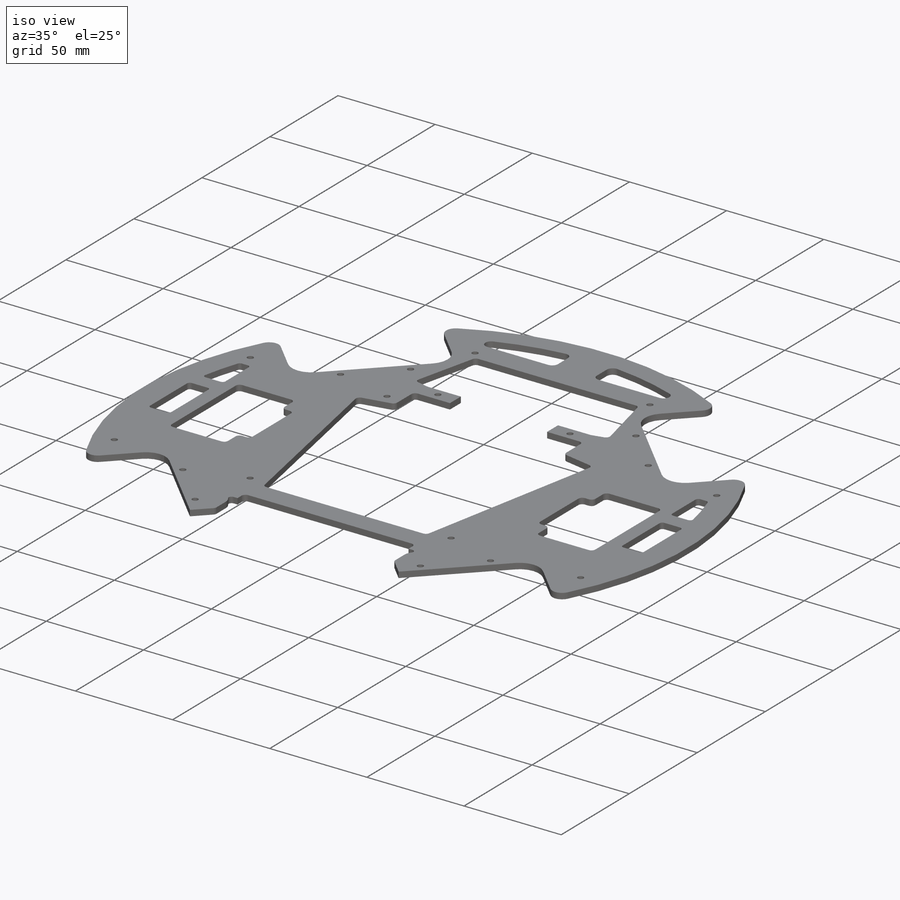
[diagram: iso view]
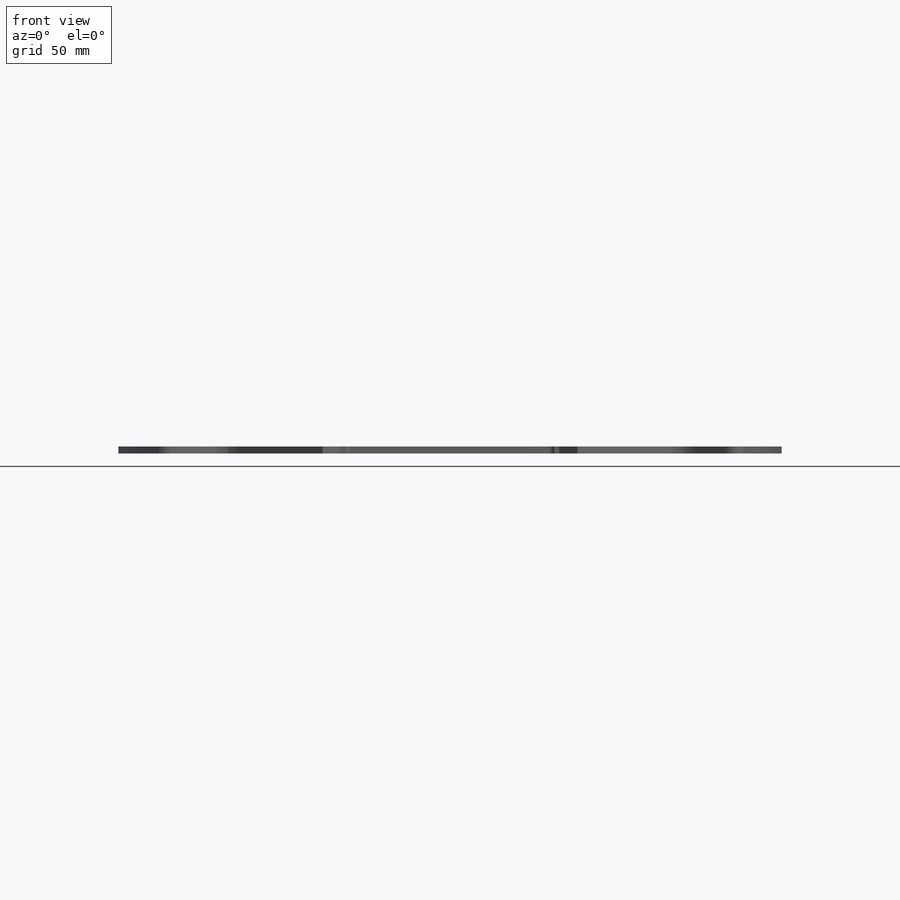
[diagram: front view]
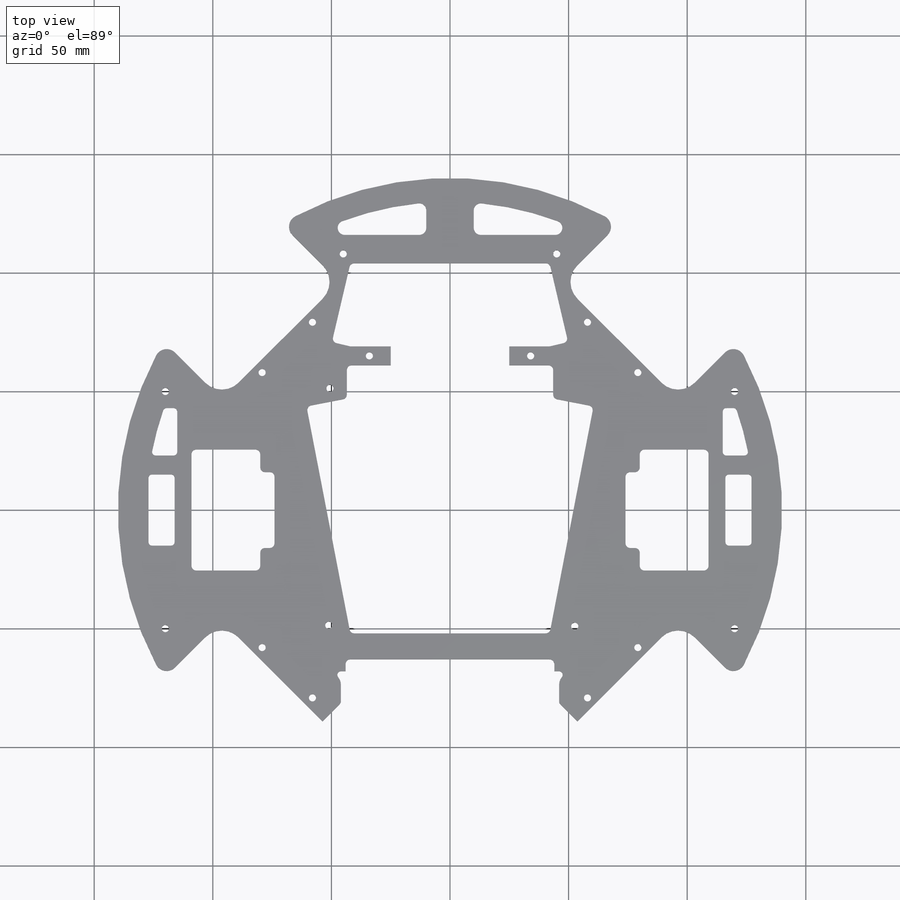
[diagram: top view]
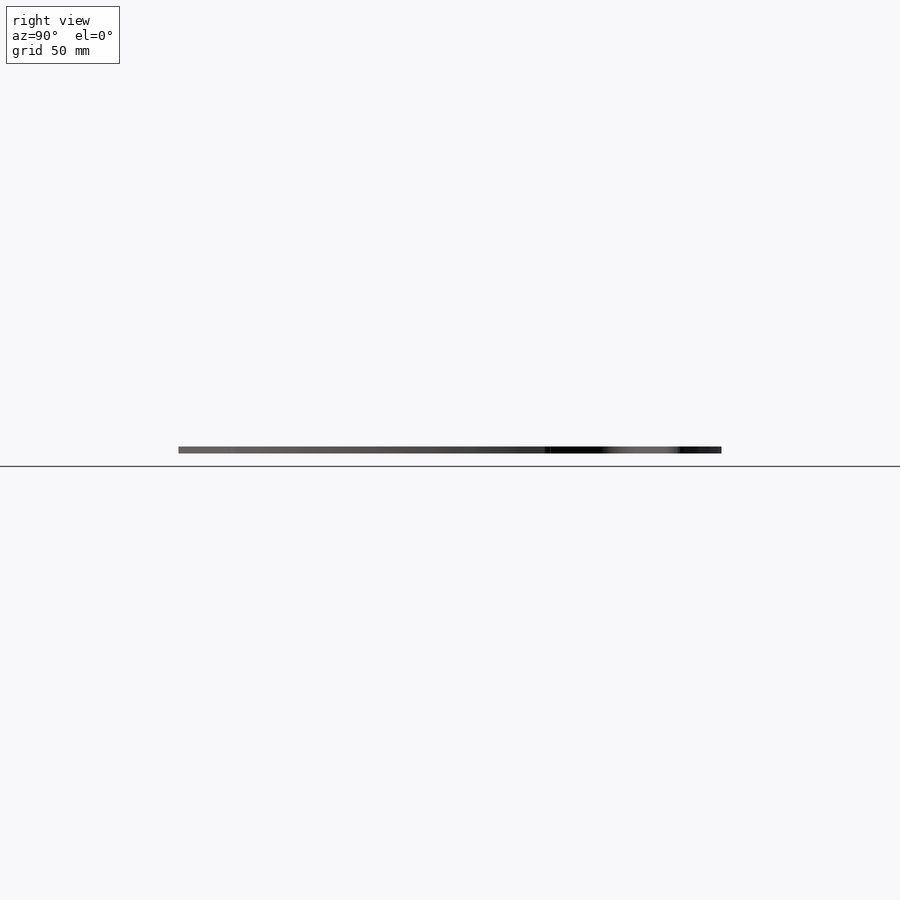
[diagram: right view]
SOLIDWORKS PART (.sldprt)
format: sldprt  version: not decoded by parser v0  size: 870,912 bytes
history: native  units: mm
features: sketch x12, cut_extrude x11, fillet x8, mirror x2, material x1, extrude x1 (+11 scaffold rows collapsed)
feature tree (46):
  scaffold x11  (default folders/planes/origin — collapsed)
  material  "1060 Alloy"
  sketch  "Sketch1"  dims[D1=280.0mm]
  extrude  "Boss-Extrude1"  Depth=3mm
  sketch  "Sketch7"  dims[c1.D4=9.95mm c1.D1=101.0mm c1.D2=70.0mm c1.D3=120.0mm c2.D3=135.0deg c2.D5=50.1mm]
  cut_extrude  "Cut-Extrude4"  [1 undecoded]
  sketch  "Sketch12"  dims[c1.D12=3.0mm c1.D1=10.0mm c1.D2=14.0mm c1.D3=8.0mm c1.D4=8.0mm c1.D5=14.0mm c1.D6=~33.944796mm c2.D6=~0.561705deg c3.D6=8.0mm c3.D3=2.0mm c3.D7=40.0mm c3.D8=6.0mm c3.D9=3.0mm c3.D10=30.0mm c3.D11=10.0mm c3.D13=~23.554417mm c4.D3=6.0mm c4.D4=8.0mm c4.D6=1.55mm c4.D7=40.0mm c5.D4=8.0mm c5.D13=8.0mm c6.D4=8.0mm c6.D13=8.0mm c6.D14=6.0mm c7.D4=8.0mm c7.D13=8.0mm c7.D2=20.0mm c7.D3=4.0mm c8.D4=4.0mm c8.D5=20.0mm]
  cut_extrude  "Cut-Extrude8"  [1 undecoded]
  fillet  "Fillet2"  Radius=5mm
  mirror  "Mirror1"
  mirror  "Mirror2"
  sketch  "Sketch17"  dims[D1=93.0mm]
  cut_extrude  "Cut-Extrude11"  [1 undecoded]
  sketch  "Sketch19"  dims[c1.D4=1.5mm c1.D5=5.0mm c1.D1=25.0mm c1.D2=92.0mm c1.D3=46.0mm c2.D1=30.0mm c2.D6=2.0mm c2.D7=25.0mm]
  cut_extrude  "Cut-Extrude13"  [1 undecoded]
  sketch  "Sketch22"  dims[c1.D1=18.0mm c1.D4=10.0mm c1.D2=36.0mm c1.D3=18.0mm c1.D5=105.0mm c2.D1=51.0mm c2.D2=28.0mm c2.D3=27.0mm c2.D4=85.0mm c2.D5=85.0mm c2.D6=51.0mm c2.D7=29.0mm c2.D8=25.5mm c3.D4=115.0mm c3.D5=118.0mm c4.D4=80.0mm c4.D5=80.0mm]
  cut_extrude  "Cut-Extrude16"  [1 undecoded]
  fillet  "Fillet4"  Radius=2mm
  sketch  "Sketch25"  dims[D1=3.0mm D2=50.0mm D3=120.0mm D4=50.0mm D5=120.0mm]
  cut_extrude  "Cut-Extrude19"  [1 undecoded]
  sketch  "Sketch26"  dims[c1.D1=2.5mm c1.D5=5.0mm c1.D3=3.0mm c1.D4=3.0mm c1.D14=3.0mm c1.D18=3.0mm c1.D13=~56.68824mm c2.D14=~63.852858mm c2.D2=70.0mm c2.D3=15.0mm c2.D4=15.0mm c2.D6=20.0mm c2.D7=27.5mm c3.D3=10.0mm c3.D5=40.0mm c3.D6=5.0mm c3.D8=20.0mm c3.D4=10.0mm c3.D9=40.0mm c3.D10=20.0mm c3.D11=50.0mm c3.D12=50.0mm c3.D13=5.0mm c4.D6=45.0mm c4.D13=20.0mm c4.D3=40.0mm c4.D2=55.0mm c5.D3=25.0mm c5.D5=68.0mm c5.D6=34.0mm c5.D7=65.0mm c5.D8=43.0mm c5.D9=90.0mm c5.D10=45.0mm c6.D8=43.0mm c6.D13=8.0mm c6.D14=8.0mm c6.D15=20.0mm c6.D16=20.0mm c6.D17=8.0mm c6.D18=8.0mm c7.D13=10.0mm c7.D14=10.0mm c7.D15=20.0mm c7.D16=8.0mm c7.D17=10.0mm]
  cut_extrude  "Cut-Extrude20"  [1 undecoded]
  sketch  "Sketch28"  dims[c1.D2=1.5mm c1.D3=3.0mm c2.D2=~95.339174mm c2.D3=~28.847367mm c2.D1=2.0mm c3.D2=3.0mm c3.D4=100.0mm c3.D1=12.0mm c3.D3=5.0mm c4.D4=8.0mm c4.D1=8.0mm c5.D4=20.0mm c5.D5=15.0mm c5.D1=8.0mm c5.D2=5.0mm c5.D3=5.0mm c6.D4=8.0mm c6.D5=~35.944597mm c6.D2=6.0mm c6.D1=5.0mm c6.D3=7.0mm c7.D5=12.0mm c7.D6=12.0mm c7.D7=4.0mm c7.D1=8.0mm c7.D2=20.0mm c7.D3=10.0mm c8.D2=10.0mm c8.D3=20.0mm c8.D1=10.0mm c9.D2=32.0mm c9.D3=16.0mm c9.D4=17.0mm c9.D1=35.0mm]
  cut_extrude  "Cut-Extrude23"  [1 undecoded]
  fillet  "Fillet9"  Radius=2mm
  sketch  "Sketch30"  dims[c1.D1=3.0mm c1.D2=3.0mm c2.D1=3.0mm c2.D2=3.0mm]
  cut_extrude  "Cut-Extrude25"  [1 undecoded]
  fillet  "Fillet7"  Radius=2mm
  sketch  "Sketch29"  dims[c1.D8=~239.235993mm c1.D1=11.0mm c1.D2=30.0mm c1.D3=3.2mm c1.D6=2.4mm c1.D7=0.5mm c2.D8=12.0mm c2.D9=30.0mm c2.D10=11.0mm c2.D11=15.0mm c2.D2=8.0mm c2.D3=8.0mm c2.D4=20.0mm c2.D5=20.0mm c2.D6=10.0mm c2.D7=16.0mm c3.D6=8.5mm c3.D7=16.0mm c3.D11=6.0mm c4.D6=6.0mm c4.D4=1.5mm c4.D5=1.5mm]
  cut_extrude  "Cut-Extrude24"  [1 undecoded]
  fillet  "Fillet10"  Radius=1.5mm
  fillet  "Fillet11"  Radius=3mm
  sketch  "Sketch35"  dims[c1.D1=3.0mm c1.D12=8.0mm c1.D20=3.0mm c1.D22=3.0mm c1.D2=127.0mm c1.D3=127.0mm c1.D4=63.5mm c1.D5=65.0mm c1.D6=11.9mm c1.D7=13.0mm c1.D8=13.4mm c1.D9=11.4mm c1.D10=13.7mm c1.D11=11.9mm c1.D13=5.0mm c1.D14=5.0mm c1.D15=5.0mm c1.D16=10.0mm c1.D17=~10.845497mm c2.D17=95.0deg c2.D18=12.0mm c2.D19=8.0mm c2.D20=~8.737621mm c3.D20=95.0deg c3.D21=18.0mm c4.D21=135.0deg c4.D6=42.0mm c4.D13=84.0mm c4.D14=3.0mm c4.D15=3.0mm c4.D17=8.0mm c4.D18=10.0mm c4.D19=~16.294215mm c5.D18=20.0mm c5.D19=20.0mm c5.D20=4.0mm c5.D21=4.0mm c5.D22=9.0mm c5.D23=35.0mm c5.D24=80.0mm c5.D25=11.9mm c5.D26=~100.386636mm c6.D24=84.0mm c6.D26=42.0mm c6.D27=8.0mm c6.D4=62.5mm c6.D14=60.5mm c6.D15=60.5mm c6.D17=14.0mm c6.D22=9.0mm c6.D18=43.5mm c6.D19=43.5mm]
  cut_extrude  "Cut-Extrude28"  [1 undecoded]
  fillet  "Fillet13"  Radius=2mm
  fillet  "Fillet14"  Radius=2mm
decode coverage: 21 of 34 modeling features carry decoded parameters
note: ~ marks probable driven/reference dimensions
note: 11 parameter values undecoded
summary: no parameter record found for 11 features
note: suppression state not decoded; provenance and decode notes live in map.json
